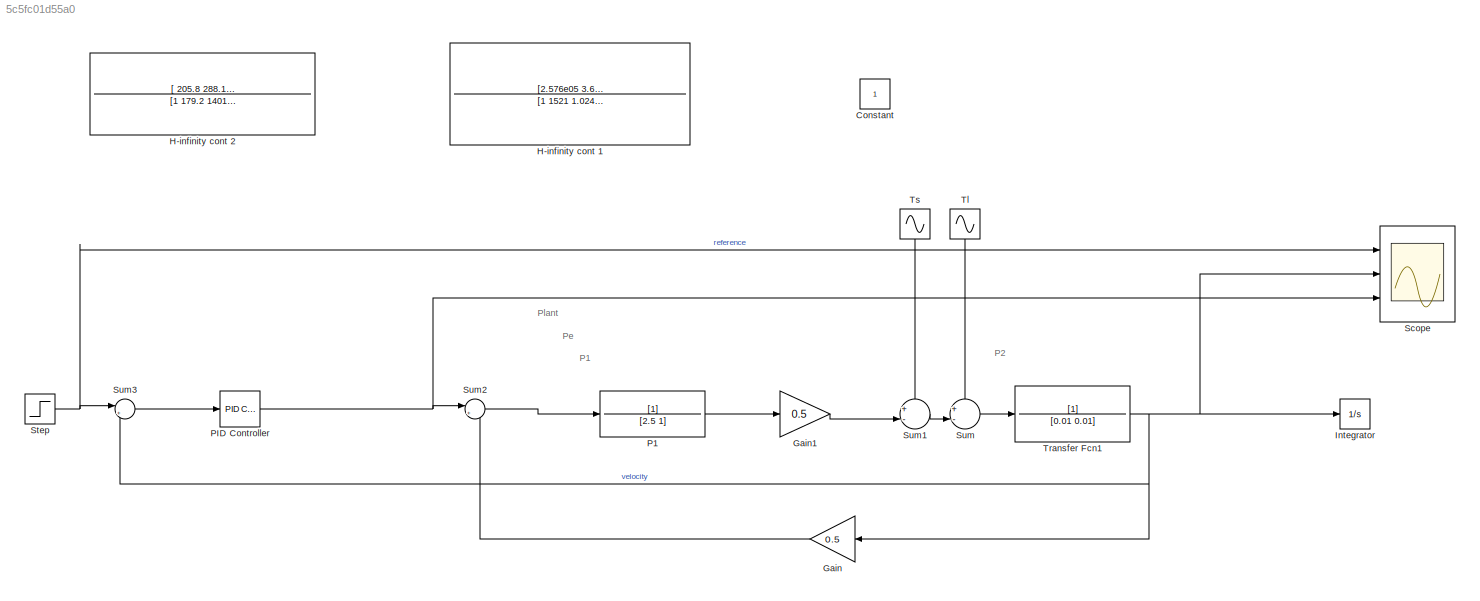
MODEL slx_5c5fc01d55a0
KIND model
CONFIG AbsTol = auto
CONFIG EnableMultiTasking = off
CONFIG FixedStep = auto
CONFIG MaxStep = auto
CONFIG MinStep = auto
CONFIG RelTol = 1e-3
CONFIG SampleTimeConstraint = Unconstrained
CONFIG SolverName = VariableStepAuto
CONFIG StartTime = 0.0
CONFIG StopTime = 100.0
BLOCK [Constant] Constant
  NameLocation = left
BLOCK [Gain] Gain
  Gain = 0.5
  NameLocation = top
BLOCK [Gain] Gain1
  Gain = 0.5
BLOCK [TransferFcn] H-infinity cont 1
  Denominator = [1 1521 1.024e06 8.228e04]
  Numerator = [2.576e05 3.607e05 2.679e06]
BLOCK [TransferFcn] H-infinity cont 2
  Denominator = [1 179.2 1401 111.4]
  Numerator = [ 205.8 288.1 2140]
BLOCK [Integrator] Integrator
  Ports = [1, 1]
BLOCK [TransferFcn] P1
  Denominator = [2.5 1]
BLOCK [Reference] PID Controller  REF=slpidlib/PID Controller
  Ports = [1, 1]
  SourceBlock = slpidlib/PID Controller
  SourceProductBaseCode = SL
  SourceType = PID 1dof
BLOCK [Scope] Scope
  Floating = off
  NumInputPorts = 3
  Ports = [3]
  ScopeSpecificationString = Simulink.scopes.TimeScopeBlockCfg('CurrentConfiguration', extmgr.ConfigurationSet(extmgr.Configuration('Core','General UI',true),extmgr.Configuration('Core','Source UI',true),extmgr.Configuration('Sources','WiredSimulink',true),extmgr.Configuration('Visuals','Time Domain',true,'SerializedDisplays',{struct('MinYLimReal','-0.13172','MaxYLimReal','1.18548','YLabelReal','','MinYLimMag','0.00000','MaxY...<+1944ch>
BLOCK [Step] Step
  SampleTime = 0
BLOCK [Sum] Sum
  Inputs = +-|
  Ports = [2, 1]
BLOCK [Sum] Sum1
  Inputs = +-|
  Ports = [2, 1]
BLOCK [Sum] Sum2
  Inputs = |+-
  Ports = [2, 1]
BLOCK [Sum] Sum3
  Inputs = |+-
  Ports = [2, 1]
BLOCK [Sin] Tl
  NameLocation = top
  Ports = [0, 1]
  SampleTime = 0
BLOCK [TransferFcn] Transfer Fcn1
  Denominator = [0.01 0.01]
BLOCK [Sin] Ts  
  NameLocation = left
  Ports = [0, 1]
  SampleTime = 0
ANNOTATION (root): P1
ANNOTATION (root): P2
ANNOTATION (root): Pe
ANNOTATION (root): Plant
LINE Gain1:1 -> Sum1:2
LINE Gain:1 -> Sum2:2
LINE P1:1 -> Gain1:1
NET PID Controller:1 -> Scope:3, Sum2:1
NET Step:1 -> Scope:1, Sum3:1
LINE Sum1:1 -> Sum:2
LINE Sum2:1 -> P1:1
LINE Sum3:1 -> PID Controller:1
LINE Sum:1 -> Transfer Fcn1:1
LINE Tl:1 -> Sum:1
NET Transfer Fcn1:1 -> Gain:1, Integrator:1, Scope:2, Sum3:2
LINE Ts  :1 -> Sum1:1
note: NET lines group one-source signal fan-out (src -> all destinations, sorted); 1:1 wires keep LINE
